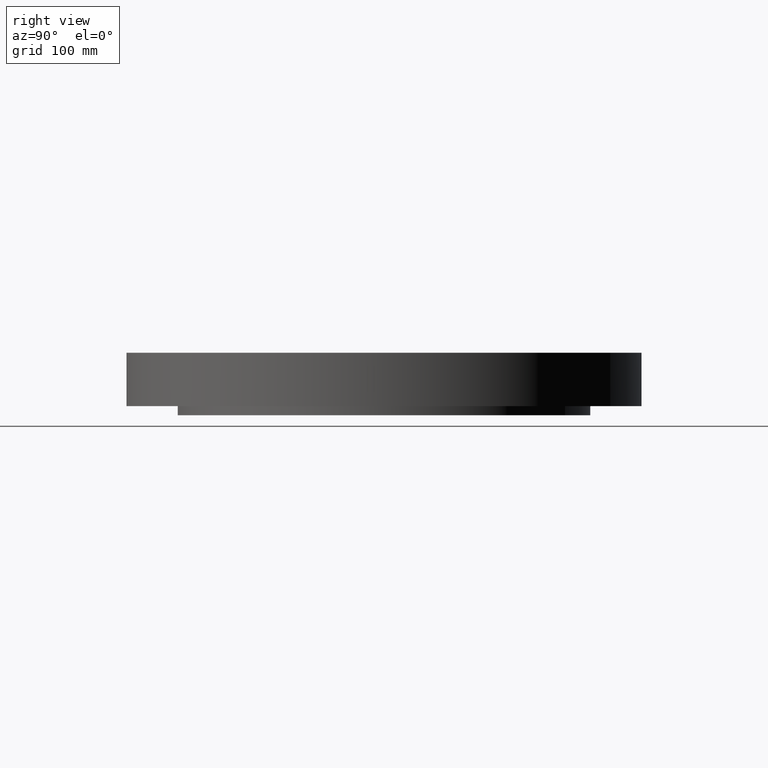
[diagram: clean part render]
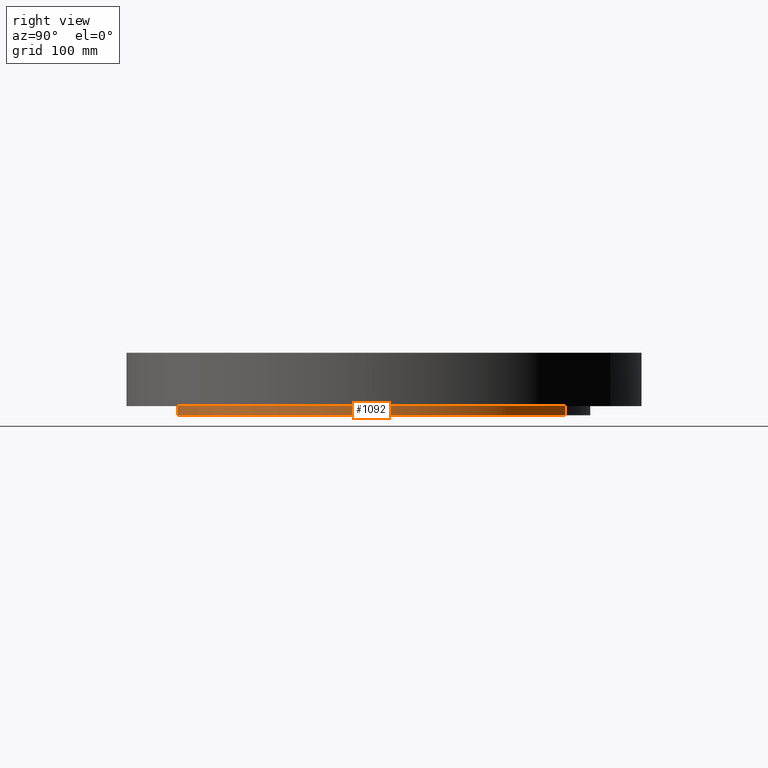
[diagram: same view with one face highlighted and labeled with its STEP entity id]
A machine part, right view. The second image highlights one B-rep face of the part: STEP entity #1092.
In plain terms, the highlighted cylindrical surface (partial cylindrical patch) has radius 177.8 mm, axis along (0, 0, -1).
Its self-contained STEP definition (entity closure, byte-faithful):
#61=AXIS2_PLACEMENT_3D('Circle Axis2P3D',#59,#60,$) ;
#994=AXIS2_PLACEMENT_3D('Circle Axis2P3D',#992,#993,$) ;
#1074=AXIS2_PLACEMENT_3D('Cylinder Axis2P3D',#1071,#1072,#1073) ;
#59=CARTESIAN_POINT('Axis2P3D Location',(0.,0.,-0.312500000001)) ;
#63=CARTESIAN_POINT('Vertex',(3.35597877024,6.14307793326,-0.312500000001)) ;
#65=CARTESIAN_POINT('Vertex',(-3.35597877024,-6.14307793326,-0.312500000001)) ;
#992=CARTESIAN_POINT('Axis2P3D Location',(0.,0.,0.)) ;
#996=CARTESIAN_POINT('Vertex',(3.35597877024,6.14307793326,8.39223703654E-016)) ;
#998=CARTESIAN_POINT('Vertex',(-3.35597877024,-6.14307793326,8.39223703654E-016)) ;
#1071=CARTESIAN_POINT('Axis2P3D Location',(0.,0.,0.748750000003)) ;
#1076=CARTESIAN_POINT('Line Origine',(3.35597877024,6.14307793326,-0.156250000001)) ;
#1081=CARTESIAN_POINT('Line Origine',(-3.35597877024,-6.14307793326,-0.156250000001)) ;
#60=DIRECTION('Axis2P3D Direction',(0.,0.,-0.0393700787402)) ;
#993=DIRECTION('Axis2P3D Direction',(0.,0.,-0.0393700787402)) ;
#1072=DIRECTION('Axis2P3D Direction',(0.,0.,-0.0393700787402)) ;
#1073=DIRECTION('Axis2P3D XDirection',(-0.0188750212049,-0.0345504945626,0.)) ;
#1077=DIRECTION('Vector Direction',(0.,0.,-0.0393700787402)) ;
#1082=DIRECTION('Vector Direction',(0.,0.,-0.0393700787402)) ;
#1078=VECTOR('Line Direction',#1077,0.0393700787402) ;
#1083=VECTOR('Line Direction',#1082,0.0393700787402) ;
#1087=ORIENTED_EDGE('',*,*,#67,.F.) ;
#1088=ORIENTED_EDGE('',*,*,#1080,.T.) ;
#1089=ORIENTED_EDGE('',*,*,#1000,.T.) ;
#1090=ORIENTED_EDGE('',*,*,#1085,.F.) ;
#1092=ADVANCED_FACE('PartBody',(#1091),#1075,.T.) ;
#62=CIRCLE('generated circle',#61,7.00000000003) ;
#995=CIRCLE('generated circle',#994,7.00000000003) ;
#1075=CYLINDRICAL_SURFACE('generated cylinder',#1074,7.00000000003) ;
#67=EDGE_CURVE('',#64,#66,#62,.T.) ;
#1000=EDGE_CURVE('',#997,#999,#995,.T.) ;
#1080=EDGE_CURVE('',#64,#997,#1079,.F.) ;
#1085=EDGE_CURVE('',#66,#999,#1084,.F.) ;
#1086=EDGE_LOOP('',(#1087,#1088,#1089,#1090)) ;
#1091=FACE_OUTER_BOUND('',#1086,.T.) ;
#1079=LINE('Line',#1076,#1078) ;
#1084=LINE('Line',#1081,#1083) ;
#64=VERTEX_POINT('',#63) ;
#66=VERTEX_POINT('',#65) ;
#997=VERTEX_POINT('',#996) ;
#999=VERTEX_POINT('',#998) ;